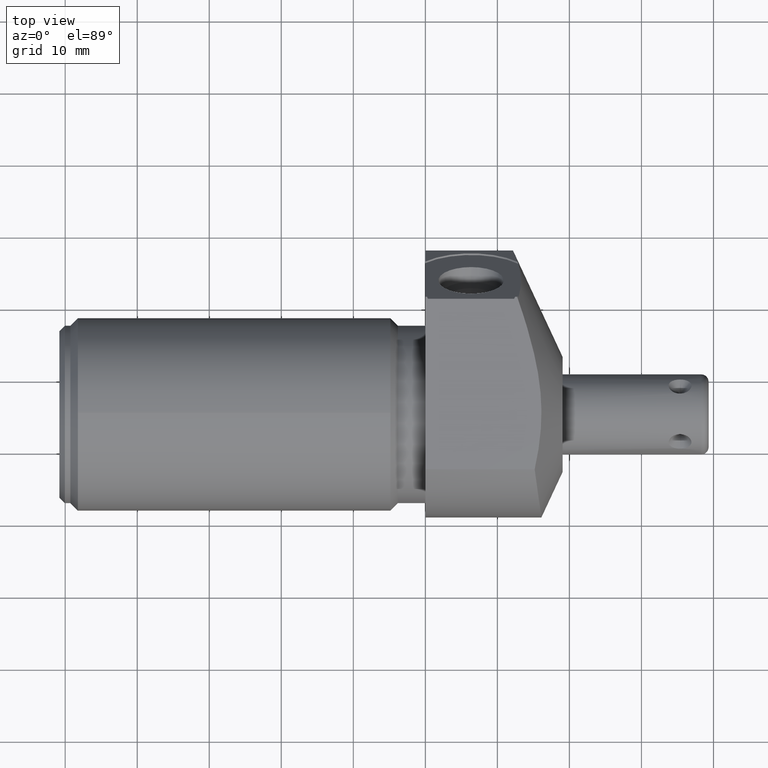
[diagram: clean part render]
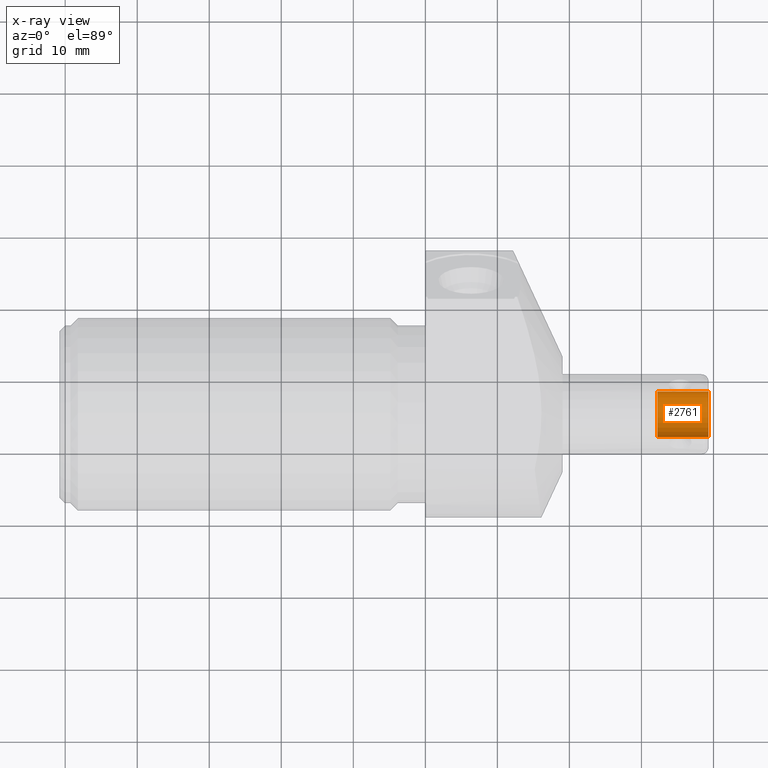
[diagram: x-ray — body ghosted, one internal face saturated and labeled with its STEP entity id]
A machine part, top view, then the same camera in x-ray: the body is ghosted and one INTERNAL B-rep face — a face not visible from any outside direction — is saturated and labeled: STEP entity #2761.
In plain terms, the highlighted cylindrical surface (edge-blend (fillet) strip) has radius 3.175 mm, axis along (1, 0, 0).
Its self-contained STEP definition (entity closure, byte-faithful):
#2672=CARTESIAN_POINT('',(1.548E0,-1.87E-1,0.E0));
#2673=DIRECTION('',(1.E0,0.E0,0.E0));
#2674=DIRECTION('',(0.E0,-1.E0,0.E0));
#2675=AXIS2_PLACEMENT_3D('',#2672,#2673,#2674);
#2680=DIRECTION('',(-1.E0,0.E0,0.E0));
#2681=VECTOR('',#2680,2.8E-1);
#2682=CARTESIAN_POINT('',(1.548E0,-3.12E-1,0.E0));
#2683=LINE('',#2682,#2681);
#2695=DIRECTION('',(-1.E0,0.E0,0.E0));
#2696=VECTOR('',#2695,2.8E-1);
#2697=CARTESIAN_POINT('',(1.548E0,-6.2E-2,0.E0));
#2698=LINE('',#2697,#2696);
#2710=CARTESIAN_POINT('',(1.268E0,-1.87E-1,0.E0));
#2711=DIRECTION('',(1.E0,0.E0,0.E0));
#2712=DIRECTION('',(0.E0,-1.E0,0.E0));
#2713=AXIS2_PLACEMENT_3D('',#2710,#2711,#2712);
#2734=CARTESIAN_POINT('',(1.548E0,-6.2E-2,0.E0));
#2735=CARTESIAN_POINT('',(1.548E0,-3.12E-1,0.E0));
#2736=VERTEX_POINT('',#2734);
#2737=VERTEX_POINT('',#2735);
#2738=CARTESIAN_POINT('',(1.268E0,-6.2E-2,0.E0));
#2739=CARTESIAN_POINT('',(1.268E0,-3.12E-1,0.E0));
#2740=VERTEX_POINT('',#2738);
#2741=VERTEX_POINT('',#2739);
#2746=CARTESIAN_POINT('',(1.548E0,-1.87E-1,0.E0));
#2747=DIRECTION('',(1.E0,0.E0,0.E0));
#2748=DIRECTION('',(0.E0,1.E0,0.E0));
#2749=AXIS2_PLACEMENT_3D('',#2746,#2747,#2748);
#2750=CYLINDRICAL_SURFACE('',#2749,1.25E-1);
#2752=ORIENTED_EDGE('',*,*,#2751,.T.);
#2754=ORIENTED_EDGE('',*,*,#2753,.T.);
#2756=ORIENTED_EDGE('',*,*,#2755,.F.);
#2758=ORIENTED_EDGE('',*,*,#2757,.F.);
#2759=EDGE_LOOP('',(#2752,#2754,#2756,#2758));
#2760=FACE_OUTER_BOUND('',#2759,.F.);
#2761=ADVANCED_FACE('',(#2760),#2750,.T.);
#2676=CIRCLE('',#2675,1.25E-1);
#2714=CIRCLE('',#2713,1.25E-1);
#2751=EDGE_CURVE('',#2737,#2736,#2676,.T.);
#2753=EDGE_CURVE('',#2736,#2740,#2698,.T.);
#2755=EDGE_CURVE('',#2741,#2740,#2714,.T.);
#2757=EDGE_CURVE('',#2737,#2741,#2683,.T.);